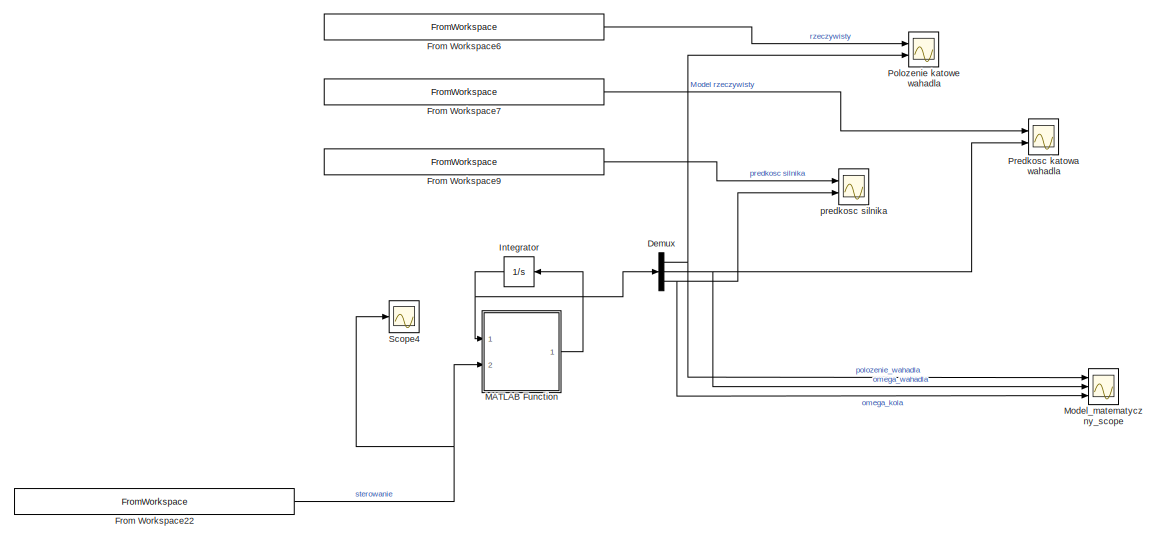
[diagram: root canvas - part 1/2, left side, full height]
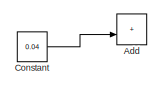
[diagram: root canvas - part 2/2, top right region]
MODEL slx_25282689fd77
KIND model
CONFIG AbsTol = auto
CONFIG EnableMultiTasking = off
CONFIG FixedStep = auto
CONFIG MaxStep = auto
CONFIG MinStep = auto
CONFIG RelTol = 1e-3
CONFIG SampleTimeConstraint = Unconstrained
CONFIG SolverName = VariableStepAuto
CONFIG StartTime = 0.0
CONFIG StopTime = 30
BLOCK [Sum] Add
  IconShape = rectangular
  Ports = [2, 1]
BLOCK [Constant] Constant
  Value = 0.04
BLOCK [Demux] Demux
  Outputs = 3
  Ports = [1, 3]
BLOCK [FromWorkspace] From Workspace22
  VariableName = [model_rzeczywisty.time, model_rzeczywisty.signals(8).values]
BLOCK [FromWorkspace] From Workspace6
  VariableName = [model_rzeczywisty.time, model_rzeczywisty.signals(1).values]
BLOCK [FromWorkspace] From Workspace7
  VariableName = [model_rzeczywisty.time, model_rzeczywisty.signals(4).values]
BLOCK [FromWorkspace] From Workspace9
  VariableName = [model_rzeczywisty.time, model_rzeczywisty.signals(6).values]
BLOCK [Integrator] Integrator
  InitialCondition = [0, 0, 0]
  NameLocation = top
  Ports = [1, 1]
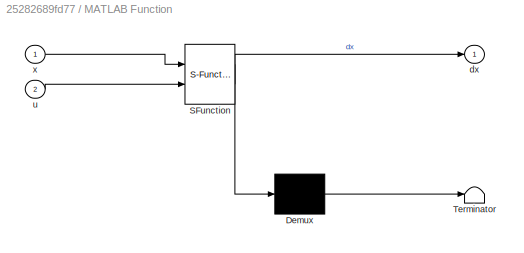
BLOCK [SubSystem] MATLAB Function
  ErrorFcn = Stateflow.Translate.translate
  PermitHierarchicalResolution = ExplicitOnly
  Ports = [2, 1]
  RequestExecContextInheritance = off
  SFBlockType = MATLAB Function
  TreatAsAtomicUnit = on
BLOCK [Demux] MATLAB Function/ Demux 
  Outputs = 1
  Ports = [1, 1]
BLOCK [S-Function] MATLAB Function/ SFunction 
  EnableBusSupport = on
  FunctionName = sf_sfun
  PortCounts = [2 2]
  Ports = [2, 2]
  SFcnIsStateOwnerBlock = off
  SFunctionDeploymentMode = off
  Tag = Stateflow S-Function 2
BLOCK [Terminator] MATLAB Function/ Terminator 
BLOCK [Outport] MATLAB Function/dx
BLOCK [Inport] MATLAB Function/u
  Port = 2
BLOCK [Inport] MATLAB Function/x
BLOCK [Scope] Model_matematyczny_scope
  Floating = off
  NumInputPorts = 3
  Ports = [3]
  ScopeSpecificationString = Simulink.scopes.TimeScopeBlockCfg('CurrentConfiguration', extmgr.ConfigurationSet(extmgr.Configuration('Core','General UI',true),extmgr.Configuration('Core','Source UI',true),extmgr.Configuration('Sources','WiredSimulink',true,'DataLoggingVariableName','model_matematyczny_nr1','DataLogging',true,'DataLoggingSaveFormat','StructureWithTime'),extmgr.Configuration('Visuals','Time Domain',true,'Seriali...<+1540ch>
BLOCK [Scope] Polozenie katowe wahadla 
  Floating = off
  NumInputPorts = 2
  Ports = [2]
  ScopeSpecificationString = Simulink.scopes.TimeScopeBlockCfg('CurrentConfiguration', extmgr.ConfigurationSet(extmgr.Configuration('Core','General UI',true),extmgr.Configuration('Core','Source UI',true),extmgr.Configuration('Sources','WiredSimulink',true,'DataLoggingVariableName','ScopeData2'),extmgr.Configuration('Visuals','Time Domain',true,'SerializedDisplays',{struct('MinYLimReal','-0.64036','MaxYLimReal','1.12935','YLab...<+1437ch>
BLOCK [Scope] Predkosc katowa wahadla 
  Floating = off
  NumInputPorts = 2
  Ports = [2]
  ScopeSpecificationString = Simulink.scopes.TimeScopeBlockCfg('CurrentConfiguration', extmgr.ConfigurationSet(extmgr.Configuration('Core','General UI',true),extmgr.Configuration('Core','Source UI',true),extmgr.Configuration('Sources','WiredSimulink',true,'DataLoggingVariableName','ScopeData1'),extmgr.Configuration('Visuals','Time Domain',true,'SerializedDisplays',{struct('MinYLimReal','-1.05955','MaxYLimReal','0.97595','YLab...<+1445ch>
BLOCK [Scope] Scope4
  Floating = off
  NumInputPorts = 1
  Ports = [1]
  ScopeSpecificationString = Simulink.scopes.TimeScopeBlockCfg('CurrentConfiguration', extmgr.ConfigurationSet(extmgr.Configuration('Core','General UI',true),extmgr.Configuration('Core','Source UI',true),extmgr.Configuration('Sources','WiredSimulink',true,'DataLoggingVariableName','ScopeData1'),extmgr.Configuration('Visuals','Time Domain',true,'SerializedDisplays',{struct('MinYLimReal','-0.4125','MaxYLimReal','0.7125','YLabel...<+1363ch>
BLOCK [Scope] predkosc silnika 
  Floating = off
  NumInputPorts = 2
  Ports = [2]
  ScopeSpecificationString = Simulink.scopes.TimeScopeBlockCfg('CurrentConfiguration', extmgr.ConfigurationSet(extmgr.Configuration('Core','General UI',true),extmgr.Configuration('Core','Source UI',true),extmgr.Configuration('Sources','WiredSimulink',true),extmgr.Configuration('Visuals','Time Domain',true,'SerializedDisplays',{struct('MinYLimReal','-172.26137','MaxYLimReal','257.89205','YLabelReal','','MinYLimMag',' 0.00000',...<+1409ch>
LINE Constant:1 -> Add:2
NET Demux:1 -> Model_matematyczny_scope:1, Polozenie katowe wahadla :2
NET Demux:2 -> Model_matematyczny_scope:2, Predkosc katowa wahadla :2
NET Demux:3 -> Model_matematyczny_scope:3, predkosc silnika :2
NET From Workspace22:1 -> MATLAB Function:2, Scope4:1
LINE From Workspace6:1 -> Polozenie katowe wahadla :1
LINE From Workspace7:1 -> Predkosc katowa wahadla :1
LINE From Workspace9:1 -> predkosc silnika :1
NET Integrator:1 -> Demux:1, MATLAB Function:1
LINE MATLAB Function:1 -> Integrator:1
note: NET lines group one-source signal fan-out (src -> all destinations, sorted); 1:1 wires keep LINE
CHART MATLAB Function states=1 transitions=1
  STATE_LABEL 'eML_blk_kernel()'
  STATE_LABEL 'SCRIPT:\n% function dx = fcn(x, u)\n% \n% %dane wyidentyfikowane\n% MgL = 0.1064;\n% g = 9.81;\n% kt = 0.027; % NmA\n% R = 0.4; %Ohmy\n% \n% mi_phi = 0.000082; \n% % mi_phi = 1.566850664740816e-04;\n% % mi_theta = 0.0290; %zostało wyznaczone z drgań swobodnych \n% mi_theta = 0.0290;\n% \n% G = 488.7;\n% J = 0.0283; %kg*m^2\n% \n% %wspołczynnik a:\n% % a = 0.0023;\n% % b = -0.0022;\n% p = [0.002321260244060,-0.0022107...<+1038ch>'
CHART  states=0 transitions=0
